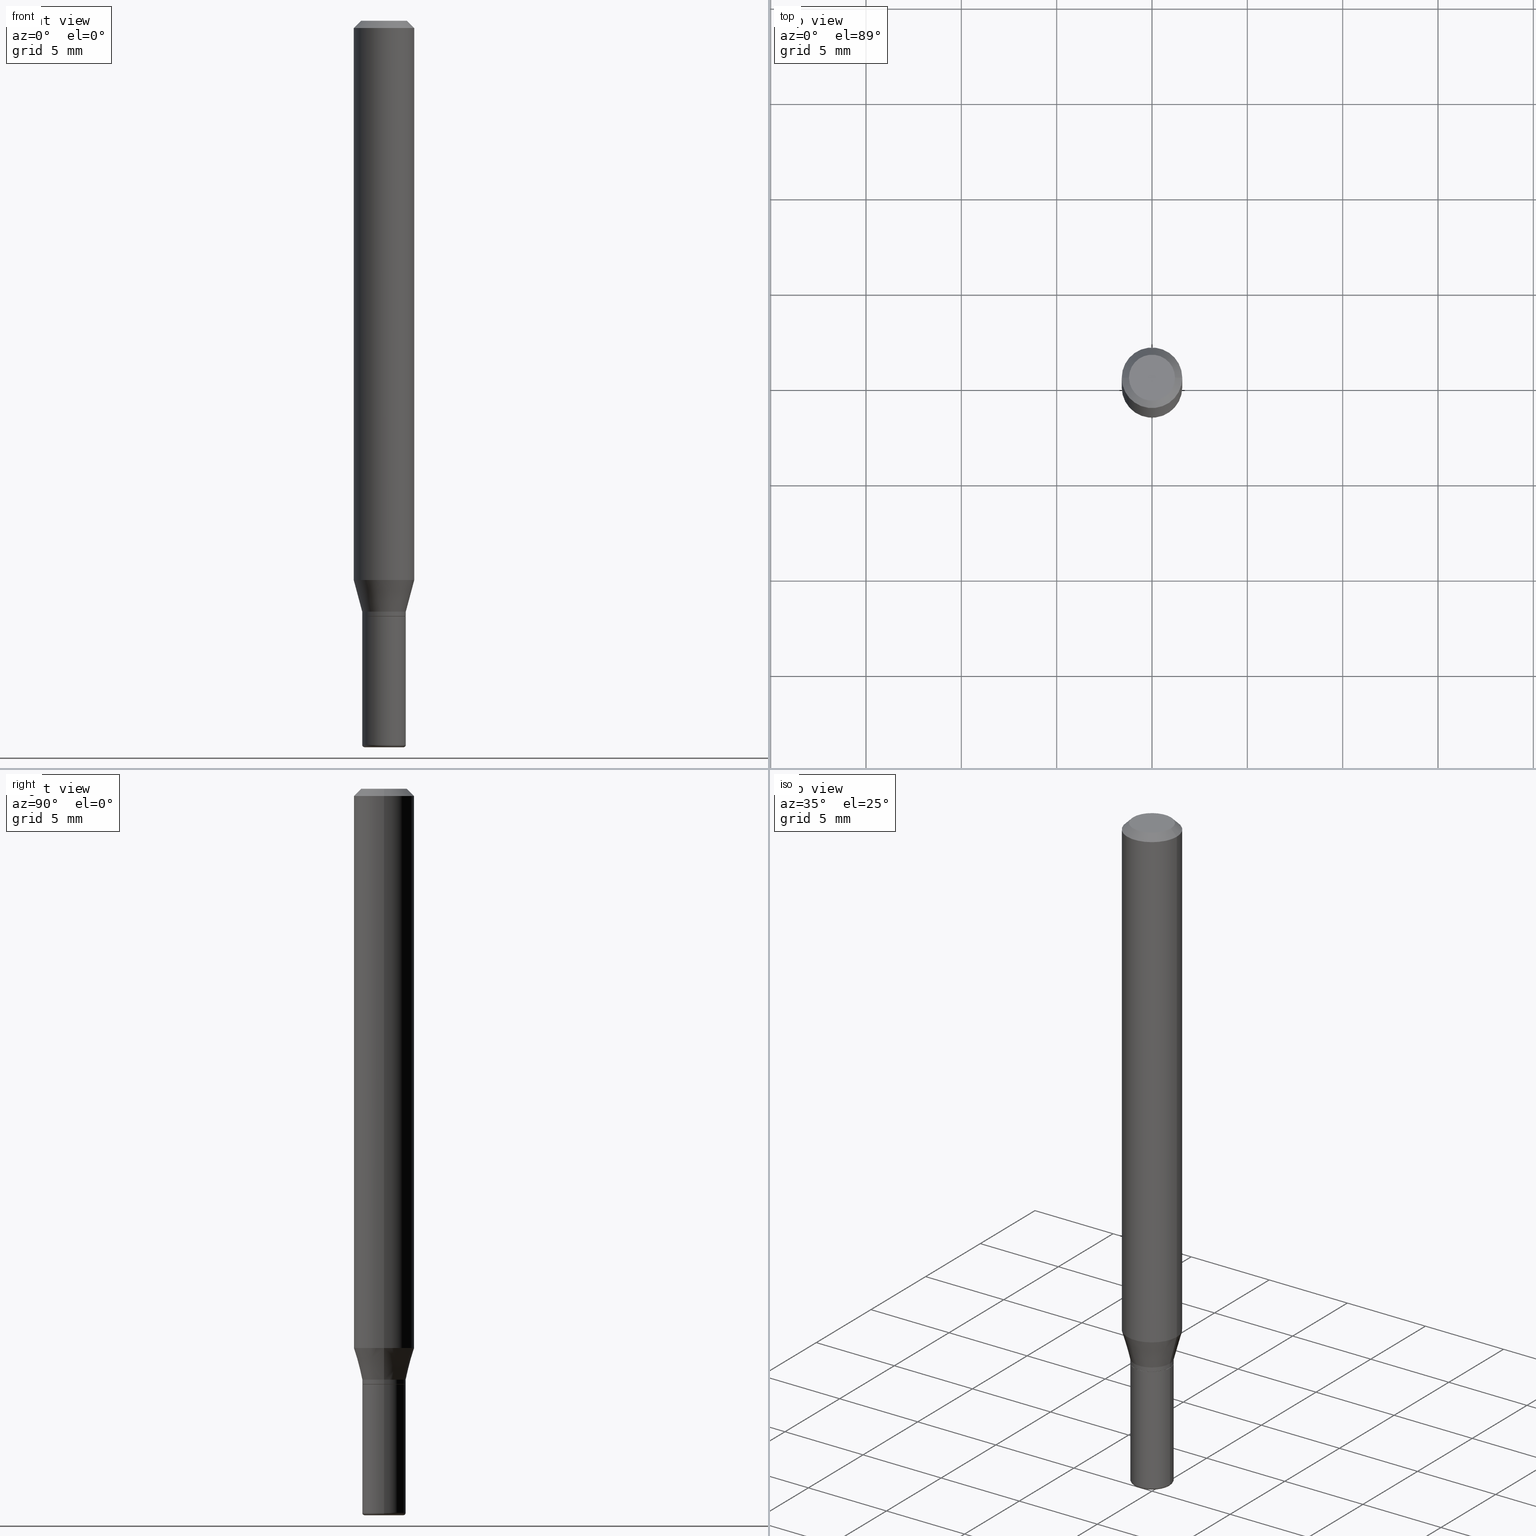
[diagram: canonical four-view strip — front | top / right | iso, engineering-drawing reading convention]
A machine part, canonical four-view strip (front | top / right | iso — engineering-drawing reading convention). The complete STEP part file that produces these views, byte-faithful:
ISO-10303-21;
HEADER;
FILE_DESCRIPTION (( 'STEP AP203' ),
    '1' );
FILE_NAME ('09061.STEP',
    '2024-02-29T21:43:45',
    ( '' ),
    ( '' ),
    'SwSTEP 2.0',
    'SolidWorks 2023',
    '' );
FILE_SCHEMA (( 'CONFIG_CONTROL_DESIGN' ));
ENDSEC;

DATA;
#1 = EDGE_CURVE ( 'NONE', #132, #485, #83, .T. ) ;
#2 = LENGTH_MEASURE_WITH_UNIT ( LENGTH_MEASURE( 0.02539999999999999897 ), #42 );
#3 = CARTESIAN_POINT ( 'NONE',  ( 0.04499999999999994976, -3.142333204958816371E-16, 2.194279549108168164E-30 ) ) ;
#4 = DIRECTION ( 'NONE',  ( -2.445468806185136597E-29, 3.491481338843145583E-15, 1.000000000000000000 ) ) ;
#5 = CLOSED_SHELL ( 'NONE', ( #403, #304, #233, #112, #118, #274 ) ) ;
#6 = VERTEX_POINT ( 'NONE', #267 ) ;
#7 = CIRCLE ( 'NONE', #185, 0.04499999999999994976 ) ;
#8 = CYLINDRICAL_SURFACE ( 'NONE', #397, 0.04499999999999993588 ) ;
#9 = VERTEX_POINT ( 'NONE', #28 ) ;
#10 = CALENDAR_DATE ( 2024, 29, 2 ) ;
#11 = ORIENTED_EDGE ( 'NONE', *, *, #277, .F. ) ;
#12 = FACE_OUTER_BOUND ( 'NONE', #458, .T. ) ;
#13 = COORDINATED_UNIVERSAL_TIME_OFFSET ( 5, 0, .BEHIND. ) ;
#14 = CARTESIAN_POINT ( 'NONE',  ( -0.06250000000000000000, -3.587486272909351485E-15, -1.154689110867544111 ) ) ;
#15 = CLOSED_SHELL ( 'NONE', ( #240, #487, #164, #500, #29, #333, #368, #358, #64, #454, #407, #104 ) ) ;
#16 = AXIS2_PLACEMENT_3D ( 'NONE', #365, #474, #284 ) ;
#17 = EDGE_CURVE ( 'NONE', #485, #455, #176, .T. ) ;
#18 = APPLICATION_PROTOCOL_DEFINITION ( 'international standard', 'config_control_design', 1994, #75 ) ;
#19 = VERTEX_POINT ( 'NONE', #389 ) ;
#20 = DIRECTION ( 'NONE',  ( 1.000000000000000000, -6.982962677686266711E-15, 0.000000000000000000 ) ) ;
#21 = CARTESIAN_POINT ( 'NONE',  ( 0.04000000000000000083, -5.516540515372168214E-15, -1.499999999999999778 ) ) ;
#22 = EDGE_LOOP ( 'NONE', ( #462, #235, #258, #105 ) ) ;
#23 = DATE_AND_TIME ( #270, #361 ) ;
#24 = DIRECTION ( 'NONE',  ( -2.445468806185136597E-29, 3.491481338843145583E-15, 1.000000000000000000 ) ) ;
#25 = DIRECTION ( 'NONE',  ( 1.000000000000000000, -6.982962677686265922E-15, 4.876176775795935793E-29 ) ) ;
#26 = ORIENTED_EDGE ( 'NONE', *, *, #1, .T. ) ;
#27 = PERSON_AND_ORGANIZATION ( #225, #398 ) ;
#28 = CARTESIAN_POINT ( 'NONE',  ( -0.04000000000000000083, -4.926512642219568995E-15, -1.499999999999999778 ) ) ;
#29 = ADVANCED_FACE ( 'NONE', ( #320 ), #298, .T. ) ;
#30 = ORIENTED_EDGE ( 'NONE', *, *, #314, .F. ) ;
#31 = EDGE_CURVE ( 'NONE', #322, #466, #355, .T. ) ;
#32 = CIRCLE ( 'NONE', #440, 0.04000000000000000083 ) ;
#33 = DIRECTION ( 'NONE',  ( 1.000000000000000000, -6.982962677686276177E-15, 0.000000000000000000 ) ) ;
#34 = APPLICATION_PROTOCOL_DEFINITION ( 'international standard', 'config_control_design', 1994, #343 ) ;
#35 = DIRECTION ( 'NONE',  ( 1.000000000000000000, -6.982962677686261189E-15, 4.883557194083110098E-29 ) ) ;
#36 = DIRECTION ( 'NONE',  ( 1.000000000000000000, -6.982962677686261977E-15, 0.000000000000000000 ) ) ;
#37 = DIRECTION ( 'NONE',  ( 1.000000000000000000, -6.982962677686269077E-15, 0.000000000000000000 ) ) ;
#38 = AXIS2_PLACEMENT_3D ( 'NONE', #400, #434, #88 ) ;
#39 = CARTESIAN_POINT ( 'NONE',  ( 0.04499999999999990119, -5.533997922066385616E-15, -1.495000000000000329 ) ) ;
#40 = AXIS2_PLACEMENT_3D ( 'NONE', #269, #237, #326 ) ;
#41 = DIRECTION ( 'NONE',  ( 1.000000000000000000, -6.982962677686257244E-15, 0.000000000000000000 ) ) ;
#42 =( LENGTH_UNIT ( ) NAMED_UNIT ( * ) SI_UNIT ( $, .METRE. ) );
#43 = CARTESIAN_POINT ( 'NONE',  ( 0.06250000000000000000, -4.811533449433669144E-16, -0.01499999999999970281 ) ) ;
#44 = ORIENTED_EDGE ( 'NONE', *, *, #31, .T. ) ;
#45 = EDGE_CURVE ( 'NONE', #511, #65, #283, .T. ) ;
#46 = VECTOR ( 'NONE', #263, 39.37007874015748854 ) ;
#47 = CARTESIAN_POINT ( 'NONE',  ( 2.823756201468229950E-29, -4.031575482759414101E-15, -1.154689110867544111 ) ) ;
#48 = AXIS2_PLACEMENT_3D ( 'NONE', #331, #207, #477 ) ;
#49 = ORIENTED_EDGE ( 'NONE', *, *, #482, .F. ) ;
#50 = DIRECTION ( 'NONE',  ( -2.445468806185136597E-29, 3.491481338843145583E-15, 1.000000000000000000 ) ) ;
#51 = APPROVAL_DATE_TIME ( #97, #464 ) ;
#52 = ORIENTED_EDGE ( 'NONE', *, *, #438, .T. ) ;
#53 = ORIENTED_EDGE ( 'NONE', *, *, #124, .F. ) ;
#54 = EDGE_CURVE ( 'NONE', #6, #352, #512, .T. ) ;
#55 = DIRECTION ( 'NONE',  ( 1.000000000000000000, -6.982962677686265922E-15, 0.000000000000000000 ) ) ;
#56 = DATE_AND_TIME ( #10, #449 ) ;
#57 = DIRECTION ( 'NONE',  ( 1.000000000000000000, -6.982962677686266711E-15, 4.876176775795935793E-29 ) ) ;
#58 = EDGE_LOOP ( 'NONE', ( #181, #305, #192, #30 ) ) ;
#59 = CIRCLE ( 'NONE', #272, 0.04499999999999992895 ) ;
#60 = PERSON_AND_ORGANIZATION_ROLE ( 'creator' ) ;
#61 = ORIENTED_EDGE ( 'NONE', *, *, #319, .F. ) ;
#62 = ORIENTED_EDGE ( 'NONE', *, *, #459, .F. ) ;
#63 = PERSON_AND_ORGANIZATION_ROLE ( 'design_supplier' ) ;
#64 = ADVANCED_FACE ( 'NONE', ( #481 ), #161, .F. ) ;
#65 = VERTEX_POINT ( 'NONE', #337 ) ;
#66 = CIRCLE ( 'NONE', #371, 0.04499999999999994976 ) ;
#67 = LOCAL_TIME ( 16, 43, 45.00000000000000000, #310 ) ;
#68 = EDGE_LOOP ( 'NONE', ( #356, #425, #291, #62 ) ) ;
#69 = ORIENTED_EDGE ( 'NONE', *, *, #205, .T. ) ;
#70 = CC_DESIGN_PERSON_AND_ORGANIZATION_ASSIGNMENT ( #27, #63, ( #518 ) ) ;
#71 =( CONVERSION_BASED_UNIT ( 'INCH', #2 ) LENGTH_UNIT ( ) NAMED_UNIT ( #330 ) );
#72 = AXIS2_PLACEMENT_3D ( 'NONE', #199, #424, #234 ) ;
#73 = EDGE_CURVE ( 'NONE', #322, #511, #66, .T. ) ;
#74 = AXIS2_PLACEMENT_3D ( 'NONE', #99, #147, #483 ) ;
#75 = APPLICATION_CONTEXT ( 'configuration controlled 3d designs of mechanical parts and assemblies' ) ;
#76 = CONICAL_SURFACE ( 'NONE', #126, 0.04499999999999992895, 0.2617993877991492968 ) ;
#77 = CARTESIAN_POINT ( 'NONE',  ( 3.668203209277632395E-31, -5.237222008264614861E-17, -0.01499999999999970281 ) ) ;
#78 = CARTESIAN_POINT ( 'NONE',  ( 0.04449999999999994238, -4.605263885934107852E-15, -1.230000000000000204 ) ) ;
#79 = PRODUCT_DEFINITION ( 'UNKNOWN', '', #518, #341 ) ;
#80 = CARTESIAN_POINT ( 'NONE',  ( 3.007926631607718216E-29, -4.294522046777069173E-15, -1.230000000000000204 ) ) ;
#81 = PRODUCT_DEFINITION_SHAPE ( 'NONE', 'NONE',  #79 ) ;
#82 = DIRECTION ( 'NONE',  ( 1.000000000000000000, -6.982962677686266711E-15, 4.876176775795934672E-29 ) ) ;
#83 = CIRCLE ( 'NONE', #335, 0.004999999999999903827 ) ;
#84 = DIRECTION ( 'NONE',  ( 1.000000000000000000, -6.982962677686266711E-15, 4.876176775795935793E-29 ) ) ;
#85 = CONICAL_SURFACE ( 'NONE', #281, 0.04449999999999994238, 0.7853981633975507526 ) ;
#86 = EDGE_CURVE ( 'NONE', #466, #393, #289, .T. ) ;
#87 = CARTESIAN_POINT ( 'NONE',  ( 3.006703897204625975E-29, -4.292776306107648458E-15, -1.229500000000000259 ) ) ;
#88 = DIRECTION ( 'NONE',  ( 1.000000000000000000, -6.982962677686266711E-15, 4.876176775795934672E-29 ) ) ;
#89 = DIRECTION ( 'NONE',  ( 2.445468806185136597E-29, -3.491481338843145583E-15, -1.000000000000000000 ) ) ;
#90 = ORIENTED_EDGE ( 'NONE', *, *, #73, .T. ) ;
#91 = CARTESIAN_POINT ( 'NONE',  ( 3.668203209277632395E-31, -5.237222008264614861E-17, -0.01499999999999970281 ) ) ;
#92 = CIRCLE ( 'NONE', #209, 0.06250000000000000000 ) ;
#93 = APPROVAL_PERSON_ORGANIZATION ( #413, #464, #130 ) ;
#94 = CARTESIAN_POINT ( 'NONE',  ( -0.04449999999999994238, -3.978330529363825493E-15, -1.230000000000000204 ) ) ;
#95 = VERTEX_POINT ( 'NONE', #117 ) ;
#96 = CARTESIAN_POINT ( 'NONE',  ( 0.04449999999999994238, -4.605263885934107852E-15, -1.230000000000000204 ) ) ;
#97 = DATE_AND_TIME ( #219, #391 ) ;
#98 = ORIENTED_EDGE ( 'NONE', *, *, #17, .F. ) ;
#99 = CARTESIAN_POINT ( 'NONE',  ( 0.000000000000000000, 0.000000000000000000, 0.000000000000000000 ) ) ;
#100 = ORIENTED_EDGE ( 'NONE', *, *, #170, .F. ) ;
#101 = CARTESIAN_POINT ( 'NONE',  ( 3.007926631607718216E-29, -4.294522046777069173E-15, -1.230000000000000204 ) ) ;
#102 = VECTOR ( 'NONE', #203, 39.37007874015748143 ) ;
#103 = DIRECTION ( 'NONE',  ( 1.000000000000000000, -6.982962677686273021E-15, 0.000000000000000000 ) ) ;
#104 = ADVANCED_FACE ( 'NONE', ( #175 ), #8, .T. ) ;
#105 = ORIENTED_EDGE ( 'NONE', *, *, #137, .F. ) ;
#106 = ORIENTED_EDGE ( 'NONE', *, *, #329, .T. ) ;
#107 = DIRECTION ( 'NONE',  ( -2.445468806185136877E-29, 3.491481338843145188E-15, 1.000000000000000000 ) ) ;
#108 = VECTOR ( 'NONE', #351, 39.37007874015748143 ) ;
#109 = TOROIDAL_SURFACE ( 'NONE', #236, 0.04000000000000000083, 0.004999999999999903827 ) ;
#110 = CC_DESIGN_APPROVAL ( #436, ( #373 ) ) ;
#111 = COORDINATED_UNIVERSAL_TIME_OFFSET ( 5, 0, .BEHIND. ) ;
#112 = ADVANCED_FACE ( 'NONE', ( #134 ), #294, .T. ) ;
#113 = ORIENTED_EDGE ( 'NONE', *, *, #127, .T. ) ;
#114 = FACE_OUTER_BOUND ( 'NONE', #430, .T. ) ;
#115 = EDGE_LOOP ( 'NONE', ( #90, #359, #382, #502 ) ) ;
#116 = DIRECTION ( 'NONE',  ( 1.000000000000000000, 0.000000000000000000, 0.000000000000000000 ) ) ;
#117 = CARTESIAN_POINT ( 'NONE',  ( -0.06250000000000000000, -1.597884641570967382E-15, -0.01499999999999970281 ) ) ;
#118 = ADVANCED_FACE ( 'NONE', ( #375 ), #427, .T. ) ;
#119 = AXIS2_PLACEMENT_3D ( 'NONE', #101, #386, #55 ) ;
#120 = PERSON_AND_ORGANIZATION ( #225, #398 ) ;
#121 = ADVANCED_BREP_SHAPE_REPRESENTATION ( '09061', ( #162, #172, #328 ), #473 ) ;
#122 = CYLINDRICAL_SURFACE ( 'NONE', #158, 0.06250000000000000000 ) ;
#123 = CARTESIAN_POINT ( 'NONE',  ( -0.06250000000000000000, 3.840629472727455270E-16, -0.01499999999999970281 ) ) ;
#124 = EDGE_CURVE ( 'NONE', #352, #95, #92, .T. ) ;
#125 = CARTESIAN_POINT ( 'NONE',  ( 0.04499999999999994976, -4.607009626603530145E-15, -1.229500000000000259 ) ) ;
#126 = AXIS2_PLACEMENT_3D ( 'NONE', #168, #476, #41 ) ;
#127 = EDGE_CURVE ( 'NONE', #9, #455, #461, .T. ) ;
#128 = CC_DESIGN_APPROVAL ( #262, ( #518 ) ) ;
#129 = CARTESIAN_POINT ( 'NONE',  ( 3.316907271900976589E-16, 0.04750000000000000749, -2.925296391183627249E-17 ) ) ;
#130 = APPROVAL_ROLE ( '' ) ;
#131 = UNCERTAINTY_MEASURE_WITH_UNIT (LENGTH_MEASURE( 1.000000000000000082E-05 ), #71, 'distance_accuracy_value', 'NONE');
#132 = VERTEX_POINT ( 'NONE', #21 ) ;
#133 = CARTESIAN_POINT ( 'NONE',  ( 0.04499999999999999833, -4.608755367272951648E-15, -1.230000000000000204 ) ) ;
#134 = FACE_OUTER_BOUND ( 'NONE', #135, .T. ) ;
#135 = EDGE_LOOP ( 'NONE', ( #417, #52, #226, #49 ) ) ;
#136 = DIRECTION ( 'NONE',  ( -1.000000000000000000, 6.982962677686266711E-15, 0.000000000000000000 ) ) ;
#137 = EDGE_CURVE ( 'NONE', #485, #252, #309, .T. ) ;
#138 = PERSON_AND_ORGANIZATION ( #225, #398 ) ;
#139 = AXIS2_PLACEMENT_3D ( 'NONE', #357, #24, #194 ) ;
#140 = CARTESIAN_POINT ( 'NONE',  ( 3.668203209277632395E-31, -5.237222008264614861E-17, -0.01499999999999970281 ) ) ;
#141 = CONICAL_SURFACE ( 'NONE', #228, 0.06250000000000000000, 0.7853981633974488341 ) ;
#142 = ORIENTED_EDGE ( 'NONE', *, *, #459, .T. ) ;
#143 = CARTESIAN_POINT ( 'NONE',  ( 3.582686580359765478E-29, -5.359686688179452536E-15, -1.499999999999999778 ) ) ;
#144 = DIRECTION ( 'NONE',  ( -2.445468806185136597E-29, 3.491481338843145583E-15, 1.000000000000000000 ) ) ;
#145 = CARTESIAN_POINT ( 'NONE',  ( -6.680649051745406845E-45, 9.538196290434862081E-31, 2.731847993664263218E-16 ) ) ;
#146 = VERTEX_POINT ( 'NONE', #187 ) ;
#147 = DIRECTION ( 'NONE',  ( -2.445468806185136597E-29, 3.491481338843145583E-15, 1.000000000000000000 ) ) ;
#148 = ORIENTED_EDGE ( 'NONE', *, *, #438, .F. ) ;
#149 = CC_DESIGN_PERSON_AND_ORGANIZATION_ASSIGNMENT ( #195, #505, ( #373 ) ) ;
#150 = AXIS2_PLACEMENT_3D ( 'NONE', #47, #295, #369 ) ;
#151 = PERSON_AND_ORGANIZATION ( #225, #398 ) ;
#152 = CARTESIAN_POINT ( 'NONE',  ( 0.04499999999999993588, -3.142333204958815878E-16, 2.194279549108167814E-30 ) ) ;
#153 = DATE_TIME_ROLE ( 'classification_date' ) ;
#154 = ORIENTED_EDGE ( 'NONE', *, *, #227, .F. ) ;
#155 = CC_DESIGN_PERSON_AND_ORGANIZATION_ASSIGNMENT ( #198, #60, ( #518 ) ) ;
#156 = ORIENTED_EDGE ( 'NONE', *, *, #170, .T. ) ;
#157 = AXIS2_PLACEMENT_3D ( 'NONE', #249, #244, #35 ) ;
#158 = AXIS2_PLACEMENT_3D ( 'NONE', #167, #286, #84 ) ;
#159 = ORIENTED_EDGE ( 'NONE', *, *, #388, .T. ) ;
#160 = FACE_OUTER_BOUND ( 'NONE', #377, .T. ) ;
#161 = PLANE ( 'NONE',  #254 ) ;
#162 = MANIFOLD_SOLID_BREP ( 'Body-Move/Copy2[1]', #5 ) ;
#163 = CARTESIAN_POINT ( 'NONE',  ( -0.04499999999999993588, 3.197442310920446281E-16, -2.213520790614704407E-30 ) ) ;
#164 = ADVANCED_FACE ( 'NONE', ( #266 ), #390, .T. ) ;
#165 = AXIS2_PLACEMENT_3D ( 'NONE', #419, #339, #494 ) ;
#166 = CC_DESIGN_APPROVAL ( #464, ( #79 ) ) ;
#167 = CARTESIAN_POINT ( 'NONE',  ( 0.000000000000000000, 0.000000000000000000, 0.000000000000000000 ) ) ;
#168 = CARTESIAN_POINT ( 'NONE',  ( 2.983471943545866110E-29, -4.259607233388636735E-15, -1.219999999999999751 ) ) ;
#169 = LINE ( 'NONE', #171, #405 ) ;
#170 = EDGE_CURVE ( 'NONE', #65, #220, #452, .T. ) ;
#171 = CARTESIAN_POINT ( 'NONE',  ( -0.04499999999999994976, 3.197442310920447267E-16, -2.213520790614704757E-30 ) ) ;
#172 = MANIFOLD_SOLID_BREP ( 'Body-Move/Copy2[2]', #15 ) ;
#173 = FACE_OUTER_BOUND ( 'NONE', #22, .T. ) ;
#174 = DIRECTION ( 'NONE',  ( -2.445468806185136877E-29, 3.491481338843145188E-15, 1.000000000000000000 ) ) ;
#175 = FACE_OUTER_BOUND ( 'NONE', #463, .T. ) ;
#176 = CIRCLE ( 'NONE', #72, 0.04499999999999990119 ) ;
#177 = AXIS2_PLACEMENT_3D ( 'NONE', #325, #478, #82 ) ;
#178 = DIRECTION ( 'NONE',  ( -1.000000000000000000, 6.982962677686266711E-15, 0.000000000000000000 ) ) ;
#179 = EDGE_CURVE ( 'NONE', #256, #265, #354, .T. ) ;
#180 = ORIENTED_EDGE ( 'NONE', *, *, #73, .F. ) ;
#181 = ORIENTED_EDGE ( 'NONE', *, *, #268, .F. ) ;
#182 = CC_DESIGN_PERSON_AND_ORGANIZATION_ASSIGNMENT ( #120, #453, ( #402 ) ) ;
#183 = CYLINDRICAL_SURFACE ( 'NONE', #74, 0.04499999999999993588 ) ;
#184 = AXIS2_PLACEMENT_3D ( 'NONE', #91, #456, #20 ) ;
#185 = AXIS2_PLACEMENT_3D ( 'NONE', #87, #247, #33 ) ;
#186 = EDGE_LOOP ( 'NONE', ( #493, #113, #98, #507 ) ) ;
#187 = CARTESIAN_POINT ( 'NONE',  ( -0.04750000000000000749, 3.578768372314221353E-16, 2.731847993664239060E-16 ) ) ;
#188 = EDGE_CURVE ( 'NONE', #265, #256, #412, .T. ) ;
#189 = CARTESIAN_POINT ( 'NONE',  ( 0.06250000000000000000, -4.468010650114805770E-15, -1.154689110867544111 ) ) ;
#190 = ORIENTED_EDGE ( 'NONE', *, *, #482, .T. ) ;
#191 = APPROVAL_ROLE ( '' ) ;
#192 = ORIENTED_EDGE ( 'NONE', *, *, #316, .T. ) ;
#193 = APPROVAL_DATE_TIME ( #23, #436 ) ;
#194 = DIRECTION ( 'NONE',  ( 1.000000000000000000, -6.982962677686257244E-15, 0.000000000000000000 ) ) ;
#195 = PERSON_AND_ORGANIZATION ( #225, #398 ) ;
#196 = EDGE_LOOP ( 'NONE', ( #443, #350, #142, #370 ) ) ;
#197 = PRODUCT_RELATED_PRODUCT_CATEGORY ( 'detail', '', ( #402 ) ) ;
#198 = PERSON_AND_ORGANIZATION ( #225, #398 ) ;
#199 = CARTESIAN_POINT ( 'NONE',  ( 3.655975865246779683E-29, -5.219764601570503930E-15, -1.495000000000000329 ) ) ;
#200 = ORIENTED_EDGE ( 'NONE', *, *, #314, .T. ) ;
#201 = VECTOR ( 'NONE', #278, 39.37007874015748143 ) ;
#202 = CARTESIAN_POINT ( 'NONE',  ( 3.655975865246779683E-29, -5.219764601570503930E-15, -1.495000000000000329 ) ) ;
#203 = DIRECTION ( 'NONE',  ( -2.445468806185136877E-29, 3.491481338843145188E-15, 1.000000000000000000 ) ) ;
#204 = CARTESIAN_POINT ( 'NONE',  ( -0.04499999999999990119, -4.437399093081741973E-15, -1.495000000000000329 ) ) ;
#205 = EDGE_CURVE ( 'NONE', #146, #6, #345, .T. ) ;
#206 = DIRECTION ( 'NONE',  ( 1.000000000000000000, -6.982962677686266711E-15, 0.000000000000000000 ) ) ;
#207 = DIRECTION ( 'NONE',  ( -2.438088387897960049E-29, 3.491481338843145188E-15, 1.000000000000000000 ) ) ;
#208 = FACE_OUTER_BOUND ( 'NONE', #217, .T. ) ;
#209 = AXIS2_PLACEMENT_3D ( 'NONE', #77, #445, #206 ) ;
#210 = CIRCLE ( 'NONE', #150, 0.06250000000000000000 ) ;
#211 = DIRECTION ( 'NONE',  ( -2.445468806185136597E-29, 3.491481338843145583E-15, 1.000000000000000000 ) ) ;
#212 = EDGE_CURVE ( 'NONE', #393, #352, #486, .T. ) ;
#213 = MECHANICAL_CONTEXT ( 'NONE', #343, 'mechanical' ) ;
#214 = DIRECTION ( 'NONE',  ( 1.000000000000000000, -6.982962677686257244E-15, 0.000000000000000000 ) ) ;
#215 = DIRECTION ( 'NONE',  ( 2.438088387897960049E-29, -3.491481338843145188E-15, -1.000000000000000000 ) ) ;
#216 = FACE_OUTER_BOUND ( 'NONE', #196, .T. ) ;
#217 = EDGE_LOOP ( 'NONE', ( #100, #446, #296, #421 ) ) ;
#218 = VECTOR ( 'NONE', #257, 39.37007874015748143 ) ;
#219 = CALENDAR_DATE ( 2024, 29, 2 ) ;
#220 = VERTEX_POINT ( 'NONE', #14 ) ;
#221 = CARTESIAN_POINT ( 'NONE',  ( 3.142333204959120083E-16, 0.04499999999999570316, -1.230000000000000204 ) ) ;
#222 = DIRECTION ( 'NONE',  ( -2.445468806185136597E-29, 3.491481338843145583E-15, 1.000000000000000000 ) ) ;
#223 = PERSON_AND_ORGANIZATION_ROLE ( 'creator' ) ;
#224 = DIRECTION ( 'NONE',  ( 1.000000000000000000, -6.982962677686261189E-15, 4.883557194083110098E-29 ) ) ;
#225 = PERSON ( 'UNSPECIFIED', 'UNSPECIFIED', 'UNSPECIFIED', ('UNSPECIFIED'), ('UNSPECIFIED'), ('UNSPECIFIED') ) ;
#226 = ORIENTED_EDGE ( 'NONE', *, *, #137, .T. ) ;
#227 = EDGE_CURVE ( 'NONE', #95, #352, #404, .T. ) ;
#228 = AXIS2_PLACEMENT_3D ( 'NONE', #140, #89, #178 ) ;
#229 = ORIENTED_EDGE ( 'NONE', *, *, #127, .F. ) ;
#230 = EDGE_CURVE ( 'NONE', #65, #466, #465, .T. ) ;
#231 = CALENDAR_DATE ( 2024, 29, 2 ) ;
#232 = EDGE_LOOP ( 'NONE', ( #302, #451, #53, #347 ) ) ;
#233 = ADVANCED_FACE ( 'NONE', ( #378 ), #422, .F. ) ;
#234 = DIRECTION ( 'NONE',  ( 1.000000000000000000, -6.982962677686261977E-15, 0.000000000000000000 ) ) ;
#235 = ORIENTED_EDGE ( 'NONE', *, *, #444, .T. ) ;
#236 = AXIS2_PLACEMENT_3D ( 'NONE', #409, #290, #224 ) ;
#237 = DIRECTION ( 'NONE',  ( -2.445468806185136597E-29, 3.491481338843145583E-15, 1.000000000000000000 ) ) ;
#238 = ORIENTED_EDGE ( 'NONE', *, *, #86, .F. ) ;
#239 = ORIENTED_EDGE ( 'NONE', *, *, #509, .T. ) ;
#240 = ADVANCED_FACE ( 'NONE', ( #253 ), #183, .T. ) ;
#241 = DIRECTION ( 'NONE',  ( -2.445468806185136597E-29, 3.491481338843145583E-15, 1.000000000000000000 ) ) ;
#242 = VECTOR ( 'NONE', #174, 39.37007874015748143 ) ;
#243 = AXIS2_PLACEMENT_3D ( 'NONE', #381, #349, #496 ) ;
#244 = DIRECTION ( 'NONE',  ( -2.445468806185136597E-29, 3.491481338843145583E-15, 1.000000000000000000 ) ) ;
#245 = DIRECTION ( 'NONE',  ( -2.445468806185136597E-29, 3.491481338843145583E-15, 1.000000000000000000 ) ) ;
#246 = DIRECTION ( 'NONE',  ( 1.000000000000000000, -6.982962677686259611E-15, 0.000000000000000000 ) ) ;
#247 = DIRECTION ( 'NONE',  ( -2.445468806185136597E-29, 3.491481338843145583E-15, 1.000000000000000000 ) ) ;
#248 = CIRCLE ( 'NONE', #420, 0.04499999999999999833 ) ;
#249 = CARTESIAN_POINT ( 'NONE',  ( 3.655975865246779122E-29, -5.219764601570503141E-15, -1.495000000000000107 ) ) ;
#250 = COORDINATED_UNIVERSAL_TIME_OFFSET ( 5, 0, .BEHIND. ) ;
#251 = DIRECTION ( 'NONE',  ( -2.445468806185136597E-29, 3.491481338843145583E-15, 1.000000000000000000 ) ) ;
#252 = VERTEX_POINT ( 'NONE', #133 ) ;
#253 = FACE_OUTER_BOUND ( 'NONE', #115, .T. ) ;
#254 = AXIS2_PLACEMENT_3D ( 'NONE', #129, #215, #327 ) ;
#255 = DIRECTION ( 'NONE',  ( 0.7071067811865479058, -7.319954787623257623E-15, -0.7071067811865471286 ) ) ;
#256 = VERTEX_POINT ( 'NONE', #96 ) ;
#257 = DIRECTION ( 'NONE',  ( -0.7071067811866199593, 7.493145998870616062E-15, 0.7071067811864750752 ) ) ;
#258 = ORIENTED_EDGE ( 'NONE', *, *, #329, .F. ) ;
#259 = DIRECTION ( 'NONE',  ( -2.438088387897960049E-29, 3.491481338843145188E-15, 1.000000000000000000 ) ) ;
#260 = APPROVAL_ROLE ( '' ) ;
#261 = ORIENTED_EDGE ( 'NONE', *, *, #188, .F. ) ;
#262 = APPROVAL ( #300, 'UNSPECIFIED' ) ;
#263 = DIRECTION ( 'NONE',  ( -0.2588190451025205729, 5.211531920934544731E-15, 0.9659258262890682012 ) ) ;
#264 = AXIS2_PLACEMENT_3D ( 'NONE', #367, #514, #475 ) ;
#265 = VERTEX_POINT ( 'NONE', #292 ) ;
#266 = FACE_OUTER_BOUND ( 'NONE', #68, .T. ) ;
#267 = CARTESIAN_POINT ( 'NONE',  ( 0.04750000000000000749, -4.035134999187568762E-16, 2.731847993664288856E-16 ) ) ;
#268 = EDGE_CURVE ( 'NONE', #265, #511, #297, .T. ) ;
#269 = CARTESIAN_POINT ( 'NONE',  ( 3.668203209277704335E-29, -5.237222008264717388E-15, -1.499999999999999778 ) ) ;
#270 = CALENDAR_DATE ( 2024, 29, 2 ) ;
#271 = ORIENTED_EDGE ( 'NONE', *, *, #45, .F. ) ;
#272 = AXIS2_PLACEMENT_3D ( 'NONE', #513, #516, #214 ) ;
#273 = ORIENTED_EDGE ( 'NONE', *, *, #429, .F. ) ;
#274 = ADVANCED_FACE ( 'NONE', ( #12 ), #344, .F. ) ;
#275 = DIRECTION ( 'NONE',  ( -2.445468806185136877E-29, 3.491481338843145188E-15, 1.000000000000000000 ) ) ;
#276 = DIRECTION ( 'NONE',  ( 1.000000000000000000, -6.982962677686276177E-15, 0.000000000000000000 ) ) ;
#277 = EDGE_CURVE ( 'NONE', #220, #95, #360, .T. ) ;
#278 = DIRECTION ( 'NONE',  ( -0.7071067811865479058, 2.468850131082261005E-15, -0.7071067811865471286 ) ) ;
#279 = CARTESIAN_POINT ( 'NONE',  ( 0.000000000000000000, 0.000000000000000000, 0.000000000000000000 ) ) ;
#280 = AXIS2_PLACEMENT_3D ( 'NONE', #348, #308, #136 ) ;
#281 = AXIS2_PLACEMENT_3D ( 'NONE', #332, #211, #432 ) ;
#282 =( NAMED_UNIT ( * ) PLANE_ANGLE_UNIT ( ) SI_UNIT ( $, .RADIAN. ) );
#283 = LINE ( 'NONE', #163, #102 ) ;
#284 = DIRECTION ( 'NONE',  ( 1.000000000000000000, -6.982962677686262766E-15, 0.000000000000000000 ) ) ;
#285 = CARTESIAN_POINT ( 'NONE',  ( 3.668203209277704335E-29, -5.237222008264717388E-15, -1.499999999999999778 ) ) ;
#286 = DIRECTION ( 'NONE',  ( -2.445468806185136597E-29, 3.491481338843145583E-15, 1.000000000000000000 ) ) ;
#287 = CARTESIAN_POINT ( 'NONE',  ( 0.06250000000000000000, -4.888073874380378612E-16, -0.01499999999999970281 ) ) ;
#288 = CONICAL_SURFACE ( 'NONE', #243, 0.04449999999999994238, 0.7853981633975507526 ) ;
#289 = LINE ( 'NONE', #442, #479 ) ;
#290 = DIRECTION ( 'NONE',  ( -2.445468806185136597E-29, 3.491481338843145583E-15, 1.000000000000000000 ) ) ;
#291 = ORIENTED_EDGE ( 'NONE', *, *, #124, .T. ) ;
#292 = CARTESIAN_POINT ( 'NONE',  ( -0.04449999999999994238, -3.975681302189714292E-15, -1.230000000000000204 ) ) ;
#293 = EDGE_CURVE ( 'NONE', #466, #65, #59, .T. ) ;
#294 = CYLINDRICAL_SURFACE ( 'NONE', #38, 0.04499999999999994976 ) ;
#295 = DIRECTION ( 'NONE',  ( -2.445468806185136597E-29, 3.491481338843145583E-15, 1.000000000000000000 ) ) ;
#296 = ORIENTED_EDGE ( 'NONE', *, *, #86, .T. ) ;
#297 = LINE ( 'NONE', #94, #218 ) ;
#298 = CONICAL_SURFACE ( 'NONE', #139, 0.04499999999999992895, 0.2617993877991492968 ) ;
#299 = APPROVAL_PERSON_ORGANIZATION ( #138, #262, #260 ) ;
#300 = APPROVAL_STATUS ( 'not_yet_approved' ) ;
#301 = CARTESIAN_POINT ( 'NONE',  ( -6.680649051745406845E-45, 9.538196290434862081E-31, 2.731847993664263218E-16 ) ) ;
#302 = ORIENTED_EDGE ( 'NONE', *, *, #319, .T. ) ;
#303 = DIRECTION ( 'NONE',  ( 2.438088387897960049E-29, -3.491481338843145188E-15, -1.000000000000000000 ) ) ;
#304 = ADVANCED_FACE ( 'NONE', ( #173 ), #334, .T. ) ;
#305 = ORIENTED_EDGE ( 'NONE', *, *, #188, .T. ) ;
#306 = DATE_AND_TIME ( #387, #67 ) ;
#307 = EDGE_LOOP ( 'NONE', ( #106, #190 ) ) ;
#308 = DIRECTION ( 'NONE',  ( 2.445468806185136597E-29, -3.491481338843145583E-15, -1.000000000000000000 ) ) ;
#309 = LINE ( 'NONE', #3, #242 ) ;
#310 = COORDINATED_UNIVERSAL_TIME_OFFSET ( 5, 0, .BEHIND. ) ;
#311 = VECTOR ( 'NONE', #408, 39.37007874015748143 ) ;
#312 = AXIS2_PLACEMENT_3D ( 'NONE', #143, #259, #25 ) ;
#313 = DIRECTION ( 'NONE',  ( -6.982962677686266711E-15, -1.000000000000000000, 3.491481338843145583E-15 ) ) ;
#314 = EDGE_CURVE ( 'NONE', #511, #322, #7, .T. ) ;
#315 = ORIENTED_EDGE ( 'NONE', *, *, #509, .F. ) ;
#316 = EDGE_CURVE ( 'NONE', #256, #322, #435, .T. ) ;
#317 = EDGE_LOOP ( 'NONE', ( #431, #156, #61, #238 ) ) ;
#318 = DATE_AND_TIME ( #231, #399 ) ;
#319 = EDGE_CURVE ( 'NONE', #393, #220, #336, .T. ) ;
#320 = FACE_OUTER_BOUND ( 'NONE', #317, .T. ) ;
#321 = CIRCLE ( 'NONE', #264, 0.04499999999999999833 ) ;
#322 = VERTEX_POINT ( 'NONE', #125 ) ;
#323 = CARTESIAN_POINT ( 'NONE',  ( 0.000000000000000000, 0.000000000000000000, 0.000000000000000000 ) ) ;
#324 = CARTESIAN_POINT ( 'NONE',  ( 3.006703897204625975E-29, -4.292776306107648458E-15, -1.229500000000000259 ) ) ;
#325 = CARTESIAN_POINT ( 'NONE',  ( 0.000000000000000000, 0.000000000000000000, 0.000000000000000000 ) ) ;
#326 = DIRECTION ( 'NONE',  ( 1.000000000000000000, -6.982962677686259611E-15, 0.000000000000000000 ) ) ;
#327 = DIRECTION ( 'NONE',  ( -1.000000000000000000, 6.982962677686265922E-15, -4.876176775795935793E-29 ) ) ;
#328 = AXIS2_PLACEMENT_3D ( 'NONE', #323, #468, #116 ) ;
#329 = EDGE_CURVE ( 'NONE', #252, #19, #248, .T. ) ;
#330 = DIMENSIONAL_EXPONENTS ( 1.000000000000000000, 0.000000000000000000, 0.000000000000000000, 0.000000000000000000, 0.000000000000000000, 0.000000000000000000, 0.000000000000000000 ) ;
#331 = CARTESIAN_POINT ( 'NONE',  ( 3.007926631607718216E-29, -4.294522046777069173E-15, -1.230000000000000204 ) ) ;
#332 = CARTESIAN_POINT ( 'NONE',  ( 3.007926631607718216E-29, -4.294522046777069173E-15, -1.230000000000000204 ) ) ;
#333 = ADVANCED_FACE ( 'NONE', ( #208 ), #76, .T. ) ;
#334 = CYLINDRICAL_SURFACE ( 'NONE', #177, 0.04499999999999994976 ) ;
#335 = AXIS2_PLACEMENT_3D ( 'NONE', #394, #313, #103 ) ;
#336 = CIRCLE ( 'NONE', #16, 0.06250000000000000000 ) ;
#337 = CARTESIAN_POINT ( 'NONE',  ( -0.04499999999999992895, -3.763674637602971820E-15, -1.219999999999999751 ) ) ;
#338 = DIRECTION ( 'NONE',  ( 1.000000000000000000, -6.982962677686266711E-15, 4.852736867747365086E-29 ) ) ;
#339 = DIRECTION ( 'NONE',  ( -2.445468806185136597E-29, 3.491481338843145583E-15, 1.000000000000000000 ) ) ;
#340 = ORIENTED_EDGE ( 'NONE', *, *, #316, .F. ) ;
#341 = DESIGN_CONTEXT ( 'detailed design', #75, 'design' ) ;
#342 = ORIENTED_EDGE ( 'NONE', *, *, #179, .T. ) ;
#343 = APPLICATION_CONTEXT ( 'configuration controlled 3d designs of mechanical parts and assemblies' ) ;
#344 = PLANE ( 'NONE',  #312 ) ;
#345 = CIRCLE ( 'NONE', #448, 0.04750000000000000749 ) ;
#346 = VECTOR ( 'NONE', #401, 39.37007874015748143 ) ;
#347 = ORIENTED_EDGE ( 'NONE', *, *, #212, .F. ) ;
#348 = CARTESIAN_POINT ( 'NONE',  ( 3.668203209277632395E-31, -5.237222008264614861E-17, -0.01499999999999970281 ) ) ;
#349 = DIRECTION ( 'NONE',  ( -2.445468806185136597E-29, 3.491481338843145583E-15, 1.000000000000000000 ) ) ;
#350 = ORIENTED_EDGE ( 'NONE', *, *, #205, .F. ) ;
#351 = DIRECTION ( 'NONE',  ( -2.445468806185136877E-29, 3.491481338843145188E-15, 1.000000000000000000 ) ) ;
#352 = VERTEX_POINT ( 'NONE', #287 ) ;
#353 = SHAPE_DEFINITION_REPRESENTATION ( #81, #121 ) ;
#354 = CIRCLE ( 'NONE', #119, 0.04449999999999994238 ) ;
#355 = LINE ( 'NONE', #152, #311 ) ;
#356 = ORIENTED_EDGE ( 'NONE', *, *, #366, .F. ) ;
#357 = CARTESIAN_POINT ( 'NONE',  ( 2.983471943545866110E-29, -4.259607233388636735E-15, -1.219999999999999751 ) ) ;
#358 = ADVANCED_FACE ( 'NONE', ( #216 ), #141, .T. ) ;
#359 = ORIENTED_EDGE ( 'NONE', *, *, #45, .T. ) ;
#360 = LINE ( 'NONE', #503, #480 ) ;
#361 = LOCAL_TIME ( 16, 43, 45.00000000000000000, #111 ) ;
#362 = FACE_OUTER_BOUND ( 'NONE', #232, .T. ) ;
#363 = LINE ( 'NONE', #123, #201 ) ;
#364 = CARTESIAN_POINT ( 'NONE',  ( -0.04000000000000000083, -4.935547507266463603E-15, -1.495000000000000107 ) ) ;
#365 = CARTESIAN_POINT ( 'NONE',  ( 2.823756201468229950E-29, -4.031575482759414101E-15, -1.154689110867544111 ) ) ;
#366 = EDGE_CURVE ( 'NONE', #6, #146, #428, .T. ) ;
#367 = CARTESIAN_POINT ( 'NONE',  ( 3.007926631607718216E-29, -4.294522046777069173E-15, -1.230000000000000204 ) ) ;
#368 = ADVANCED_FACE ( 'NONE', ( #374 ), #418, .T. ) ;
#369 = DIRECTION ( 'NONE',  ( 1.000000000000000000, -6.982962677686262766E-15, 0.000000000000000000 ) ) ;
#370 = ORIENTED_EDGE ( 'NONE', *, *, #227, .T. ) ;
#371 = AXIS2_PLACEMENT_3D ( 'NONE', #324, #4, #276 ) ;
#372 = CIRCLE ( 'NONE', #40, 0.04000000000000000083 ) ;
#373 = SECURITY_CLASSIFICATION ( '', '', #384 ) ;
#374 = FACE_OUTER_BOUND ( 'NONE', #395, .T. ) ;
#375 = FACE_OUTER_BOUND ( 'NONE', #499, .T. ) ;
#376 = CARTESIAN_POINT ( 'NONE',  ( 0.000000000000000000, 0.000000000000000000, 0.000000000000000000 ) ) ;
#377 = EDGE_LOOP ( 'NONE', ( #489, #261 ) ) ;
#378 = FACE_OUTER_BOUND ( 'NONE', #307, .T. ) ;
#379 = PERSON_AND_ORGANIZATION ( #225, #398 ) ;
#380 = AXIS2_PLACEMENT_3D ( 'NONE', #376, #144, #57 ) ;
#381 = CARTESIAN_POINT ( 'NONE',  ( 3.007926631607718216E-29, -4.294522046777069173E-15, -1.230000000000000204 ) ) ;
#382 = ORIENTED_EDGE ( 'NONE', *, *, #293, .F. ) ;
#383 = CARTESIAN_POINT ( 'NONE',  ( -0.04499999999999992895, -3.939863002296592156E-15, -1.219999999999999751 ) ) ;
#384 = SECURITY_CLASSIFICATION_LEVEL ( 'unclassified' ) ;
#385 = ORIENTED_EDGE ( 'NONE', *, *, #230, .F. ) ;
#386 = DIRECTION ( 'NONE',  ( -2.445468806185136597E-29, 3.491481338843145583E-15, 1.000000000000000000 ) ) ;
#387 = CALENDAR_DATE ( 2024, 29, 2 ) ;
#388 = EDGE_CURVE ( 'NONE', #220, #393, #210, .T. ) ;
#389 = CARTESIAN_POINT ( 'NONE',  ( -0.04499999999999999833, -4.437399093081741973E-15, -1.230000000000000204 ) ) ;
#390 = CONICAL_SURFACE ( 'NONE', #280, 0.06250000000000000000, 0.7853981633974488341 ) ;
#391 = LOCAL_TIME ( 16, 43, 45.00000000000000000, #250 ) ;
#392 = CC_DESIGN_SECURITY_CLASSIFICATION ( #373, ( #518 ) ) ;
#393 = VERTEX_POINT ( 'NONE', #189 ) ;
#394 = CARTESIAN_POINT ( 'NONE',  ( 0.04000000000000000083, -5.499083108677953967E-15, -1.495000000000000107 ) ) ;
#395 = EDGE_LOOP ( 'NONE', ( #11, #159, #506, #154 ) ) ;
#396 =( NAMED_UNIT ( * ) SI_UNIT ( $, .STERADIAN. ) SOLID_ANGLE_UNIT ( ) );
#397 = AXIS2_PLACEMENT_3D ( 'NONE', #279, #222, #484 ) ;
#398 = ORGANIZATION ( 'UNSPECIFIED', 'UNSPECIFIED', '' ) ;
#399 = LOCAL_TIME ( 16, 43, 45.00000000000000000, #423 ) ;
#400 = CARTESIAN_POINT ( 'NONE',  ( 0.000000000000000000, 0.000000000000000000, 0.000000000000000000 ) ) ;
#401 = DIRECTION ( 'NONE',  ( 0.7071067811866199593, -2.468850131083015945E-15, 0.7071067811864750752 ) ) ;
#402 = PRODUCT ( '09061', '09061', '', ( #213 ) ) ;
#403 = ADVANCED_FACE ( 'NONE', ( #450 ), #109, .T. ) ;
#404 = CIRCLE ( 'NONE', #184, 0.06250000000000000000 ) ;
#405 = VECTOR ( 'NONE', #275, 39.37007874015748143 ) ;
#406 = APPROVAL_PERSON_ORGANIZATION ( #151, #436, #191 ) ;
#407 = ADVANCED_FACE ( 'NONE', ( #416 ), #288, .T. ) ;
#408 = DIRECTION ( 'NONE',  ( -2.445468806185136877E-29, 3.491481338843145188E-15, 1.000000000000000000 ) ) ;
#409 = CARTESIAN_POINT ( 'NONE',  ( 3.655975865246779122E-29, -5.219764601570503141E-15, -1.495000000000000107 ) ) ;
#410 = ORIENTED_EDGE ( 'NONE', *, *, #366, .T. ) ;
#411 = DIRECTION ( 'NONE',  ( 1.000000000000000000, -6.982962677686266711E-15, 4.852736867747365086E-29 ) ) ;
#412 = CIRCLE ( 'NONE', #165, 0.04449999999999994238 ) ;
#413 = PERSON_AND_ORGANIZATION ( #225, #398 ) ;
#414 = CC_DESIGN_DATE_AND_TIME_ASSIGNMENT ( #318, #153, ( #373 ) ) ;
#415 = DIRECTION ( 'NONE',  ( 1.000000000000000000, -6.982962677686257244E-15, 0.000000000000000000 ) ) ;
#416 = FACE_OUTER_BOUND ( 'NONE', #58, .T. ) ;
#417 = ORIENTED_EDGE ( 'NONE', *, *, #444, .F. ) ;
#418 = CYLINDRICAL_SURFACE ( 'NONE', #380, 0.06250000000000000000 ) ;
#419 = CARTESIAN_POINT ( 'NONE',  ( 3.007926631607718216E-29, -4.294522046777069173E-15, -1.230000000000000204 ) ) ;
#420 = AXIS2_PLACEMENT_3D ( 'NONE', #80, #245, #37 ) ;
#421 = ORIENTED_EDGE ( 'NONE', *, *, #388, .F. ) ;
#422 = PLANE ( 'NONE',  #508 ) ;
#423 = COORDINATED_UNIVERSAL_TIME_OFFSET ( 5, 0, .BEHIND. ) ;
#424 = DIRECTION ( 'NONE',  ( -2.445468806185136597E-29, 3.491481338843145583E-15, 1.000000000000000000 ) ) ;
#425 = ORIENTED_EDGE ( 'NONE', *, *, #54, .T. ) ;
#426 = APPROVAL_STATUS ( 'not_yet_approved' ) ;
#427 = TOROIDAL_SURFACE ( 'NONE', #157, 0.04000000000000000083, 0.004999999999999903827 ) ;
#428 = CIRCLE ( 'NONE', #510, 0.04750000000000000749 ) ;
#429 = EDGE_CURVE ( 'NONE', #132, #9, #372, .T. ) ;
#430 = EDGE_LOOP ( 'NONE', ( #342, #497, #180, #340 ) ) ;
#431 = ORIENTED_EDGE ( 'NONE', *, *, #293, .T. ) ;
#432 = DIRECTION ( 'NONE',  ( 1.000000000000000000, -6.982962677686265922E-15, 0.000000000000000000 ) ) ;
#433 = CARTESIAN_POINT ( 'NONE',  ( -0.04499999999999994976, -3.973032075015603880E-15, -1.229500000000000259 ) ) ;
#434 = DIRECTION ( 'NONE',  ( -2.445468806185136597E-29, 3.491481338843145583E-15, 1.000000000000000000 ) ) ;
#435 = LINE ( 'NONE', #78, #346 ) ;
#436 = APPROVAL ( #426, 'UNSPECIFIED' ) ;
#437 = PLANE ( 'NONE',  #48 ) ;
#438 = EDGE_CURVE ( 'NONE', #455, #485, #501, .T. ) ;
#439 = AXIS2_PLACEMENT_3D ( 'NONE', #460, #498, #415 ) ;
#440 = AXIS2_PLACEMENT_3D ( 'NONE', #285, #241, #246 ) ;
#441 = APPROVAL_STATUS ( 'not_yet_approved' ) ;
#442 = CARTESIAN_POINT ( 'NONE',  ( 0.04499999999999992895, -4.573840553884517633E-15, -1.219999999999999751 ) ) ;
#443 = ORIENTED_EDGE ( 'NONE', *, *, #54, .F. ) ;
#444 = EDGE_CURVE ( 'NONE', #455, #19, #169, .T. ) ;
#445 = DIRECTION ( 'NONE',  ( -2.445468806185136597E-29, 3.491481338843145583E-15, 1.000000000000000000 ) ) ;
#446 = ORIENTED_EDGE ( 'NONE', *, *, #230, .T. ) ;
#447 = DIRECTION ( 'NONE',  ( -1.000000000000000000, 6.982962677686265922E-15, -4.876176775795935793E-29 ) ) ;
#448 = AXIS2_PLACEMENT_3D ( 'NONE', #145, #50, #411 ) ;
#449 = LOCAL_TIME ( 16, 43, 45.00000000000000000, #13 ) ;
#450 = FACE_OUTER_BOUND ( 'NONE', #186, .T. ) ;
#451 = ORIENTED_EDGE ( 'NONE', *, *, #277, .T. ) ;
#452 = LINE ( 'NONE', #383, #46 ) ;
#453 = PERSON_AND_ORGANIZATION_ROLE ( 'design_owner' ) ;
#454 = ADVANCED_FACE ( 'NONE', ( #160 ), #437, .F. ) ;
#455 = VERTEX_POINT ( 'NONE', #204 ) ;
#456 = DIRECTION ( 'NONE',  ( -2.445468806185136597E-29, 3.491481338843145583E-15, 1.000000000000000000 ) ) ;
#457 = APPROVAL_DATE_TIME ( #306, #262 ) ;
#458 = EDGE_LOOP ( 'NONE', ( #273, #315 ) ) ;
#459 = EDGE_CURVE ( 'NONE', #146, #95, #363, .T. ) ;
#460 = CARTESIAN_POINT ( 'NONE',  ( 2.983471943545866110E-29, -4.259607233388636735E-15, -1.219999999999999751 ) ) ;
#461 = CIRCLE ( 'NONE', #491, 0.004999999999999903827 ) ;
#462 = ORIENTED_EDGE ( 'NONE', *, *, #17, .T. ) ;
#463 = EDGE_LOOP ( 'NONE', ( #271, #200, #44, #385 ) ) ;
#464 = APPROVAL ( #441, 'UNSPECIFIED' ) ;
#465 = CIRCLE ( 'NONE', #439, 0.04499999999999992895 ) ;
#466 = VERTEX_POINT ( 'NONE', #517 ) ;
#467 = EDGE_LOOP ( 'NONE', ( #69, #410 ) ) ;
#468 = DIRECTION ( 'NONE',  ( 0.000000000000000000, 0.000000000000000000, 1.000000000000000000 ) ) ;
#469 = DIRECTION ( 'NONE',  ( 0.2588190451025205729, 1.565188264969627490E-15, 0.9659258262890682012 ) ) ;
#470 = VECTOR ( 'NONE', #255, 39.37007874015748143 ) ;
#471 = DIRECTION ( 'NONE',  ( -2.445468806185136597E-29, 3.491481338843145583E-15, 1.000000000000000000 ) ) ;
#472 = DIRECTION ( 'NONE',  ( -1.000000000000000000, 7.105427357601061812E-15, 0.000000000000000000 ) ) ;
#473 =( GEOMETRIC_REPRESENTATION_CONTEXT ( 3 ) GLOBAL_UNCERTAINTY_ASSIGNED_CONTEXT ( ( #131 ) ) GLOBAL_UNIT_ASSIGNED_CONTEXT ( ( #71, #282, #396 ) ) REPRESENTATION_CONTEXT ( 'NONE', 'WORKASPACE' ) );
#474 = DIRECTION ( 'NONE',  ( -2.445468806185136597E-29, 3.491481338843145583E-15, 1.000000000000000000 ) ) ;
#475 = DIRECTION ( 'NONE',  ( 1.000000000000000000, -6.982962677686269077E-15, 0.000000000000000000 ) ) ;
#476 = DIRECTION ( 'NONE',  ( -2.445468806185136597E-29, 3.491481338843145583E-15, 1.000000000000000000 ) ) ;
#477 = DIRECTION ( 'NONE',  ( 1.000000000000000000, -6.982962677686265922E-15, 4.876176775795935793E-29 ) ) ;
#478 = DIRECTION ( 'NONE',  ( -2.445468806185136597E-29, 3.491481338843145583E-15, 1.000000000000000000 ) ) ;
#479 = VECTOR ( 'NONE', #469, 39.37007874015748854 ) ;
#480 = VECTOR ( 'NONE', #107, 39.37007874015748143 ) ;
#481 = FACE_OUTER_BOUND ( 'NONE', #467, .T. ) ;
#482 = EDGE_CURVE ( 'NONE', #19, #252, #321, .T. ) ;
#483 = DIRECTION ( 'NONE',  ( 1.000000000000000000, -6.982962677686267499E-15, 4.876176775795935232E-29 ) ) ;
#484 = DIRECTION ( 'NONE',  ( 1.000000000000000000, -6.982962677686267499E-15, 4.876176775795935232E-29 ) ) ;
#485 = VERTEX_POINT ( 'NONE', #39 ) ;
#486 = LINE ( 'NONE', #490, #108 ) ;
#487 = ADVANCED_FACE ( 'NONE', ( #114 ), #85, .T. ) ;
#488 = DATE_TIME_ROLE ( 'creation_date' ) ;
#489 = ORIENTED_EDGE ( 'NONE', *, *, #179, .F. ) ;
#490 = CARTESIAN_POINT ( 'NONE',  ( 0.06250000000000000000, -4.364351673553916694E-16, 3.047610484872459871E-30 ) ) ;
#491 = AXIS2_PLACEMENT_3D ( 'NONE', #364, #515, #472 ) ;
#492 = AXIS2_PLACEMENT_3D ( 'NONE', #202, #471, #36 ) ;
#493 = ORIENTED_EDGE ( 'NONE', *, *, #429, .T. ) ;
#494 = DIRECTION ( 'NONE',  ( 1.000000000000000000, -6.982962677686265922E-15, 0.000000000000000000 ) ) ;
#495 = CC_DESIGN_DATE_AND_TIME_ASSIGNMENT ( #56, #488, ( #79 ) ) ;
#496 = DIRECTION ( 'NONE',  ( 1.000000000000000000, -6.982962677686265922E-15, 0.000000000000000000 ) ) ;
#497 = ORIENTED_EDGE ( 'NONE', *, *, #268, .T. ) ;
#498 = DIRECTION ( 'NONE',  ( -2.445468806185136597E-29, 3.491481338843145583E-15, 1.000000000000000000 ) ) ;
#499 = EDGE_LOOP ( 'NONE', ( #229, #239, #26, #148 ) ) ;
#500 = ADVANCED_FACE ( 'NONE', ( #362 ), #122, .T. ) ;
#501 = CIRCLE ( 'NONE', #492, 0.04499999999999990119 ) ;
#502 = ORIENTED_EDGE ( 'NONE', *, *, #31, .F. ) ;
#503 = CARTESIAN_POINT ( 'NONE',  ( -0.06250000000000000000, 4.440892098500626162E-16, -3.074334431409316114E-30 ) ) ;
#504 = CC_DESIGN_PERSON_AND_ORGANIZATION_ASSIGNMENT ( #379, #223, ( #79 ) ) ;
#505 = PERSON_AND_ORGANIZATION_ROLE ( 'classification_officer' ) ;
#506 = ORIENTED_EDGE ( 'NONE', *, *, #212, .T. ) ;
#507 = ORIENTED_EDGE ( 'NONE', *, *, #1, .F. ) ;
#508 = AXIS2_PLACEMENT_3D ( 'NONE', #221, #303, #447 ) ;
#509 = EDGE_CURVE ( 'NONE', #9, #132, #32, .T. ) ;
#510 = AXIS2_PLACEMENT_3D ( 'NONE', #301, #251, #338 ) ;
#511 = VERTEX_POINT ( 'NONE', #433 ) ;
#512 = LINE ( 'NONE', #43, #470 ) ;
#513 = CARTESIAN_POINT ( 'NONE',  ( 2.983471943545866110E-29, -4.259607233388636735E-15, -1.219999999999999751 ) ) ;
#514 = DIRECTION ( 'NONE',  ( -2.445468806185136597E-29, 3.491481338843145583E-15, 1.000000000000000000 ) ) ;
#515 = DIRECTION ( 'NONE',  ( 7.105427357601001859E-15, 1.000000000000000000, -3.491481338843145583E-15 ) ) ;
#516 = DIRECTION ( 'NONE',  ( -2.445468806185136597E-29, 3.491481338843145583E-15, 1.000000000000000000 ) ) ;
#517 = CARTESIAN_POINT ( 'NONE',  ( 0.04499999999999992895, -4.573840553884517633E-15, -1.219999999999999751 ) ) ;
#518 = PRODUCT_DEFINITION_FORMATION_WITH_SPECIFIED_SOURCE ( 'ANY', '', #402, .NOT_KNOWN. ) ;
ENDSEC;
END-ISO-10303-21;
